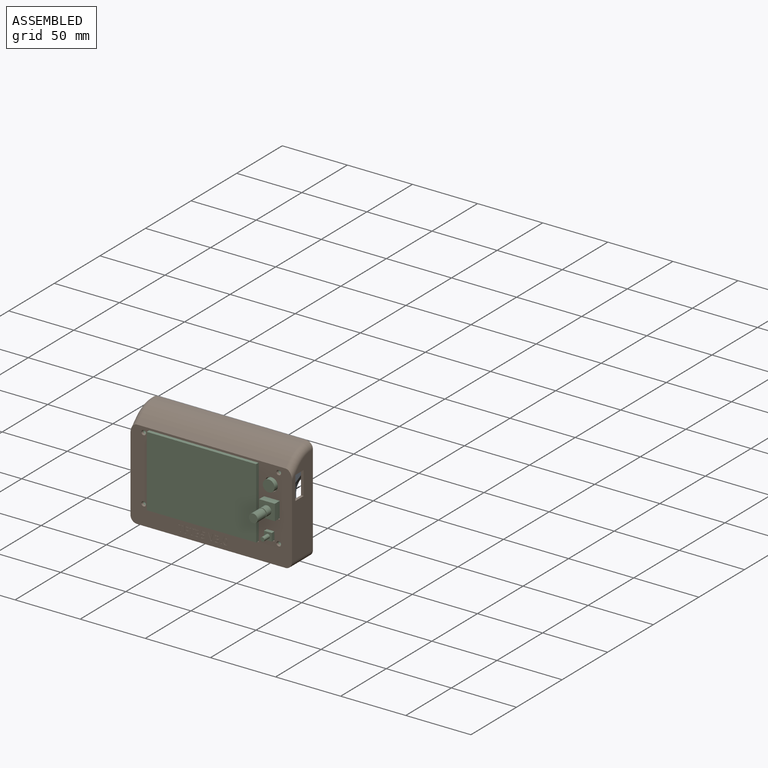
[diagram: assembled view]
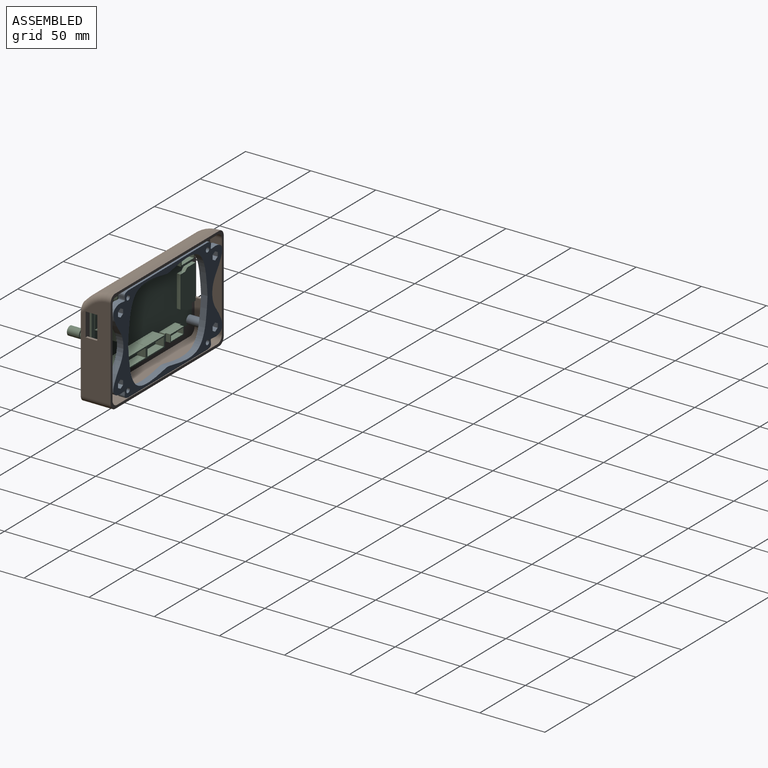
[diagram: assembled view, second angle]
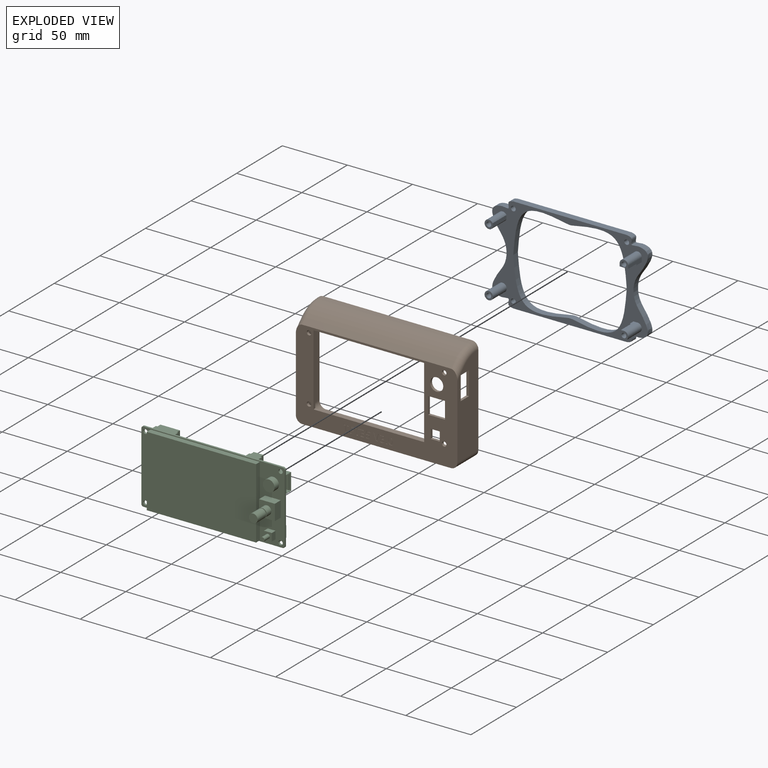
[diagram: exploded view]
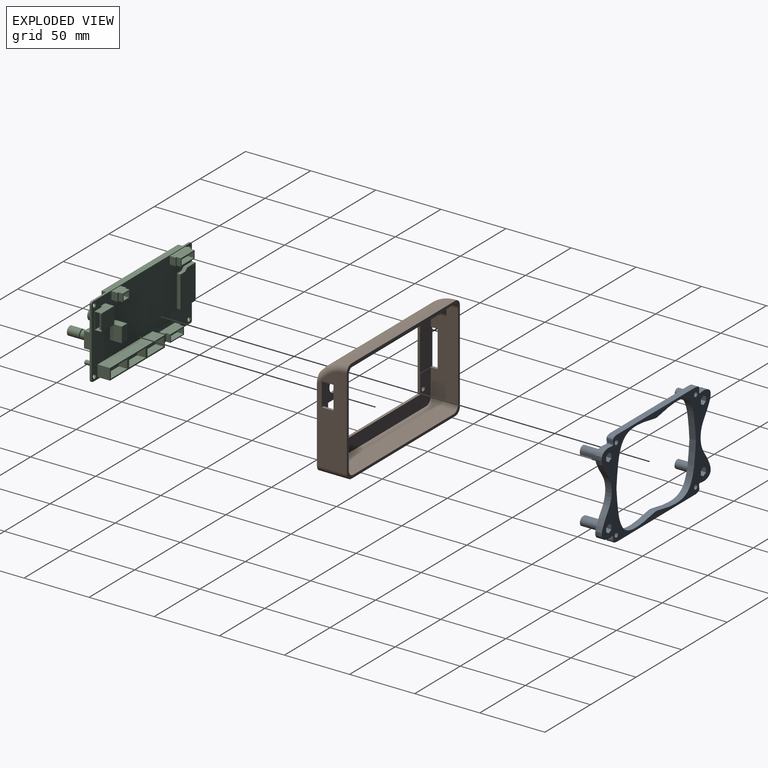
[diagram: exploded view, second angle]
ASSEMBLY  parts=3 mates=2
PART A: 75 faces, bbox 120.6x20x74.3 mm
  f0: extruded ~41.58x35.29mm, area 337.3mm2, adj f39,f40,f41,f73
  f1: extruded ~41.58x35.29mm, area 337.3mm2, adj f2,f40,f41,f73
  f2: extruded ~41.58x35.29mm, area 337.3mm2, adj f1,f40,f41,f74
  f3: plane 5x2.8mm, normal (-0.5,0,-0.87), area 16.2mm2, adj f4,f30,f41,f53
  f4: plane 5x3.23mm, normal (-1,0,0), area 16.2mm2, adj f3,f5,f41,f53
  f5: plane 5x2.8mm, normal (-0.5,0,0.87), area 16.2mm2, adj f4,f6,f41,f53
  f6: plane 5x2.8mm, normal (0.5,0,0.87), area 16.2mm2, adj f5,f7,f41,f53
  f7: plane 5x3.23mm, normal (1,0,0), area 16.2mm2, adj f6,f30,f41,f53
  f8: plane 5x3.23mm, normal (-1,0,0), area 16.2mm2, adj f9,f31,f41,f62
  f9: plane 5x2.8mm, normal (-0.5,0,0.87), area 16.2mm2, adj f8,f10,f41,f62
  f10: plane 5x2.8mm, normal (0.5,0,0.87), area 16.2mm2, adj f9,f11,f41,f62
  f11: plane 5x3.23mm, normal (1,0,0), area 16.2mm2, adj f10,f12,f41,f62
  f12: plane 5x2.8mm, normal (0.5,0,-0.87), area 16.2mm2, adj f11,f31,f41,f62
  f13: plane 5x2.8mm, normal (-0.5,0,-0.87), area 16.2mm2, adj f14,f36,f41,f52
  f14: plane 5x3.23mm, normal (-1,0,0), area 16.2mm2, adj f13,f15,f41,f52
  f15: plane 5x2.8mm, normal (-0.5,0,0.87), area 16.2mm2, adj f14,f16,f41,f52
  f16: plane 5x2.8mm, normal (0.5,0,0.87), area 16.2mm2, adj f15,f17,f41,f52
  f17: plane 5x3.23mm, normal (1,0,0), area 16.2mm2, adj f16,f36,f41,f52
  f18: plane 5x3.23mm, normal (1,0,0), area 16.2mm2, adj f19,f37,f41,f45
  f19: plane 5x2.8mm, normal (0.5,0,-0.87), area 16.2mm2, adj f18,f20,f41,f45
  f20: plane 5x2.8mm, normal (-0.5,0,-0.87), area 16.2mm2, adj f19,f21,f41,f45
  f21: plane 5x3.23mm, normal (-1,0,0), area 16.2mm2, adj f20,f22,f41,f45
  f22: plane 5x2.8mm, normal (-0.5,0,0.87), area 16.2mm2, adj f21,f37,f41,f45
  f23: cylinder r=20mm len=23.31mm, axis (0,1,0), area 124.4mm2, adj f24,f38,f40,f41
  f24: extruded ~25.5x16.2mm, area 201.4mm2, adj f23,f25,f40,f41
  f25: plane 87.1x5mm, normal (0,0,1), area 435.5mm2, adj f24,f26,f40,f41
  f26: extruded ~25.5x16.2mm, area 201.4mm2, adj f25,f27,f40,f41
  f27: cylinder r=20mm len=23.31mm, axis (0,1,0), area 124.4mm2, adj f26,f28,f40,f41
  f28: extruded ~25.5x16.2mm, area 201.4mm2, adj f27,f29,f40,f41
  f29: plane 87.1x5mm, normal (0,0,-1), area 435.5mm2, adj f28,f38,f40,f41
  f30: plane 5x2.8mm, normal (0.5,0,-0.87), area 16.2mm2, adj f3,f7,f41,f53
  f31: plane 5x2.8mm, normal (-0.5,0,-0.87), area 16.2mm2, adj f8,f12,f41,f62
  f32: cylinder r=1.85mm len=5mm, axis (0,1,0), area 58.1mm2, adj f40,f41
  f33: cylinder r=1.85mm len=5mm, axis (0,1,0), area 58.1mm2, adj f40,f41
  f34: cylinder r=1.85mm len=5mm, axis (0,1,0), area 58.1mm2, adj f40,f41
  f35: cylinder r=1.85mm len=5mm, axis (0,1,0), area 58.1mm2, adj f40,f41
  f36: plane 5x2.8mm, normal (0.5,0,-0.87), area 16.2mm2, adj f13,f17,f41,f52
  f37: plane 5x2.8mm, normal (0.5,0,0.87), area 16.2mm2, adj f18,f22,f41,f45
  f38: extruded ~25.5x16.2mm, area 201.4mm2, adj f23,f29,f40,f41
  f39: extruded ~41.58x35.29mm, area 337.3mm2, adj f0,f40,f41,f74
  f40: plane 120.64x74.3mm, normal (0,-1,0), area 2191mm2, adj f0,f1,f2,f23,f24,f25,f26,f27
  f41: plane 120.64x74.3mm, normal (0,1,0), area 2224.3mm2, adj f0,f1,f2,f3,f4,f5,f6,f7
  f42: cylinder r=1.85mm len=15mm, axis (0,1,0), area 174.4mm2, adj f44,f45
  f43: cylinder r=3.25mm len=15mm, axis (0,1,0), area 306.3mm2, adj f40,f44
  f44: plane 6.5x6.5mm, normal (0,-1,0), area 22.4mm2, adj f42,f43
  f45: plane 6.47x5.6mm, normal (0,1,0), area 16.4mm2, adj f18,f19,f20,f21,f22,f37,f42
  f46: plane 9x6.5mm, normal (0,0,-1), area 58.5mm2, adj f47,f49,f51,f72
  f47: plane 15x3.3mm, normal (1,0,0), area 40.5mm2, adj f40,f46,f48,f51,f71,f72
  f48: cylinder r=3.25mm len=15mm, axis (0,1,0), area 153.2mm2, adj f40,f47,f49,f51
  f49: plane 15x3.3mm, normal (-1,0,0), area 40.5mm2, adj f40,f46,f48,f51,f71,f72
  f50: cylinder r=1.85mm len=15mm, axis (0,1,0), area 174.4mm2, adj f51,f52
  f51: plane 6.5x5.55mm, normal (0,-1,0), area 20.8mm2, adj f46,f47,f48,f49,f50
  f52: plane 6.47x5.6mm, normal (0,1,0), area 16.4mm2, adj f13,f14,f15,f16,f17,f36,f50
  f53: plane 6.47x5.6mm, normal (0,1,0), area 16.4mm2, adj f3,f4,f5,f6,f7,f30,f60
  f54: plane 15x3.03mm, normal (1,0,0), area 45.4mm2, adj f40,f55,f59,f61
  f55: cylinder r=3.35mm len=15mm, axis (0,1,0), area 43.6mm2, adj f40,f54,f56,f61
  f56: plane 15x0.77mm, normal (0,0,1), area 11.6mm2, adj f40,f55,f57,f61
  f57: cylinder r=3.25mm len=15mm, axis (0,1,0), area 153.2mm2, adj f40,f56,f58,f61
  f58: plane 15x0.84mm, normal (0,0,-1), area 12.6mm2, adj f40,f57,f59,f61
  f59: cylinder r=3.35mm len=15mm, axis (0,1,0), area 42.5mm2, adj f40,f54,f58,f61
  f60: cylinder r=1.85mm len=15mm, axis (0,1,0), area 174.4mm2, adj f53,f61
  f61: plane 6.5x6.23mm, normal (0,-1,0), area 22.6mm2, adj f54,f55,f56,f57,f58,f59,f60
  f62: plane 6.47x5.6mm, normal (0,1,0), area 16.4mm2, adj f8,f9,f10,f11,f12,f31,f67
  f63: plane 15x3.19mm, normal (0,0,1), area 38mm2, adj f40,f64,f66,f68,f69,f70
  f64: plane 11x6.5mm, normal (-1,0,0), area 71.5mm2, adj f63,f65,f68,f69
  f65: plane 15x3.19mm, normal (0,0,-1), area 38mm2, adj f40,f64,f66,f68,f69,f70
  f66: cylinder r=3.25mm len=15mm, axis (0,1,0), area 153.2mm2, adj f40,f63,f65,f68
  f67: cylinder r=1.85mm len=15mm, axis (0,1,0), area 174.4mm2, adj f62,f68
  f68: plane 6.5x5.55mm, normal (0,-1,0), area 20.8mm2, adj f63,f64,f65,f66,f67
  f69: plane 6.5x0.89mm, normal (0,-1,0), area 5.8mm2, adj f63,f64,f65,f70
  f70: plane 6.5x4mm, normal (-1,0,0), area 26mm2, adj f40,f63,f65,f69
  f71: plane 6.5x6mm, normal (0,0,-1), area 39mm2, adj f40,f47,f49,f72
  f72: plane 6.5x1mm, normal (0,-1,0), area 6.5mm2, adj f46,f47,f49,f71
  f73: cylinder r=10mm len=5mm, axis (0,1,0), area 19.8mm2, adj f0,f1,f40,f41
  f74: cylinder r=10mm len=5mm, axis (0,1,0), area 19.8mm2, adj f2,f39,f40,f41
PART B: 198 faces, bbox 124x82.1x26.5 mm
  f0: plane 124x69mm, normal (0,0,1), area 3433.7mm2, adj f4,f5,f9,f11,f12,f13,f14,f15
  f1: plane 120x68mm, normal (0,0,-1), area 2809.1mm2, adj f3,f6,f10,f11,f12,f13,f14,f15
  f2: plane 110x9mm, normal (0,1,0), area 990mm2, adj f7,f37,f43,f45
  f3: plane 66x21mm, normal (-1,0,0), area 1141.6mm2, adj f1,f7,f33,f34,f35,f37,f41,f44
  f4: plane 70x23mm, normal (1,0,0), area 1362mm2, adj f0,f7,f32,f33,f34,f35,f46,f47
  f5: plane 70x23mm, normal (-1,0,0), area 1354mm2, adj f0,f7,f28,f29,f30,f31,f49,f50
  f6: plane 66x21mm, normal (1,0,0), area 1128mm2, adj f1,f7,f28,f29,f30,f31,f37,f40
  f7: plane 124x80mm, normal (0,0,-1), area 800mm2, adj f2,f3,f4,f5,f6,f8,f9,f10
  f8: plane 114x1.64mm, normal (0,-1,0), area 187.5mm2, adj f7,f39,f46,f51
  f9: plane 114x23mm, normal (0,1,0), area 2622mm2, adj f0,f7,f52,f53
  f10: plane 110x21mm, normal (0,-1,0), area 2310mm2, adj f1,f7,f42,f44
  f11: cylinder r=1.75mm len=3.5mm, axis (0,0,1), area 22mm2, adj f0,f1
  f12: cylinder r=1.75mm len=3.5mm, axis (0,0,1), area 22mm2, adj f0,f1
  f13: cylinder r=1.75mm len=3.5mm, axis (0,0,1), area 22mm2, adj f0,f1
  f14: cylinder r=1.75mm len=3.5mm, axis (0,0,1), area 22mm2, adj f0,f1
  f15: plane 85x2mm, normal (0,1,0), area 170mm2, adj f0,f1,f16,f18
  f16: plane 54.97x2mm, normal (-1,0,0), area 104.3mm2, adj f0,f1,f15,f17,f32,f33,f35
  f17: plane 85x2mm, normal (0,-1,0), area 170mm2, adj f0,f1,f16,f18
  f18: plane 54.97x2mm, normal (1,0,0), area 109.9mm2, adj f0,f1,f15,f17
  f19: plane 7x2mm, normal (0,1,0), area 14mm2, adj f0,f1,f20,f22
  f20: plane 7x2mm, normal (-1,0,0), area 14mm2, adj f0,f1,f19,f21
  f21: plane 7x2mm, normal (0,-1,0), area 14mm2, adj f0,f1,f20,f22
  f22: plane 7x2mm, normal (1,0,0), area 14mm2, adj f0,f1,f19,f21
  f23: plane 13x2mm, normal (0,1,0), area 26mm2, adj f0,f1,f24,f26
  f24: plane 13x2mm, normal (-1,0,0), area 26mm2, adj f0,f1,f23,f25
  f25: plane 13x2mm, normal (0,-1,0), area 26mm2, adj f0,f1,f24,f26
  f26: plane 13x2mm, normal (1,0,0), area 26mm2, adj f0,f1,f23,f25
  f27: cylinder r=5mm len=10mm, axis (0,0,1), area 62.8mm2, adj f0,f1
  f28: plane 18x2mm, normal (0,0,-1), area 36mm2, adj f5,f6,f29,f31
  f29: plane 9x2mm, normal (0,-1,0), area 18mm2, adj f5,f6,f28,f30
  f30: plane 18x2mm, normal (0,0,1), area 36mm2, adj f5,f6,f29,f31
  f31: plane 9x2mm, normal (0,1,0), area 18mm2, adj f5,f6,f28,f30
  f32: plane 28x13.5mm, normal (0,0,-1), area 378mm2, adj f4,f16,f33,f35
  f33: plane 13.5x5.5mm, normal (0,1,0), area 13.3mm2, adj f1,f3,f4,f16,f32,f34
  f34: plane 28x2mm, normal (0,0,1), area 56mm2, adj f3,f4,f33,f35
  f35: plane 13.5x5.5mm, normal (0,-1,0), area 13.3mm2, adj f1,f3,f4,f16,f32,f34
  f36: plane 110x12mm, normal (0,1,0), area 1320mm2, adj f1,f37,f40,f41
  f37: plane 120x13mm, normal (0,0,-1), area 960mm2, adj f2,f3,f6,f36,f40,f41,f43,f45
  f38: plane 114x3.68mm, normal (0,-0.71,0.71), area 592.9mm2, adj f0,f39,f48,f49
  f39: cylinder r=25mm len=114mm, axis (1,0,0), area 2238.4mm2, adj f8,f38,f47,f50
  f40: cylinder r=5mm len=12mm, axis (0,0,1), area 94.2mm2, adj f1,f6,f36,f37
  f41: cylinder r=5mm len=12mm, axis (0,0,1), area 94.2mm2, adj f1,f3,f36,f37
  f42: cylinder r=5mm len=21mm, axis (0,0,-1), area 164.9mm2, adj f1,f6,f7,f10
  f43: cylinder r=5mm len=9mm, axis (0,0,-1), area 70.7mm2, adj f2,f6,f7,f37
  f44: cylinder r=5mm len=21mm, axis (0,0,-1), area 164.9mm2, adj f1,f3,f7,f10
  f45: cylinder r=5mm len=9mm, axis (0,0,-1), area 70.7mm2, adj f2,f3,f7,f37
  f46: cylinder r=5mm len=5mm, axis (0,0,1), area 12.9mm2, adj f4,f7,f8,f47
  f47: torus R=20mm, axis (-1,0,0), area 143mm2, adj f4,f39,f46,f48
  f48: cylinder r=5mm len=10.75mm, axis (0,-0.71,-0.71), area 55.1mm2, adj f0,f4,f38,f47
  f49: cylinder r=5mm len=10.75mm, axis (0,0.71,0.71), area 55.1mm2, adj f0,f5,f38,f50
  f50: torus R=20mm, axis (1,0,0), area 143mm2, adj f5,f39,f49,f51
  f51: cylinder r=5mm len=5mm, axis (0,0,1), area 12.9mm2, adj f5,f7,f8,f50
  f52: cylinder r=5mm len=23mm, axis (0,0,1), area 180.6mm2, adj f0,f4,f7,f9
  f53: cylinder r=5mm len=23mm, axis (0,0,1), area 180.6mm2, adj f0,f5,f7,f9
  f54: plane 1.13x0.2mm, normal (0,-1,0), area 0.2mm2, adj f0,f55,f61,f62
  f55: plane 4.39x0.2mm, normal (1,0,0), area 0.9mm2, adj f0,f54,f56,f62
  f56: plane 1.45x0.2mm, normal (0,-1,0), area 0.3mm2, adj f0,f55,f57,f62
  f57: plane 0.94x0.2mm, normal (1,0,0), area 0.2mm2, adj f0,f56,f58,f62
  f58: plane 4.03x0.2mm, normal (0,1,0), area 0.8mm2, adj f0,f57,f59,f62
  f59: plane 0.94x0.2mm, normal (-1,0,0), area 0.2mm2, adj f0,f58,f60,f62
  f60: plane 1.45x0.2mm, normal (0,-1,0), area 0.3mm2, adj f0,f59,f61,f62
  f61: plane 4.39x0.2mm, normal (-1,0,0), area 0.9mm2, adj f0,f54,f60,f62
  f62: plane 5.33x4.03mm, normal (0,0,1), area 8.7mm2, adj f54,f55,f56,f57,f58,f59,f60,f61
  f63: plane 1.11x0.2mm, normal (0,-1,0), area 0.2mm2, adj f0,f64,f72,f73
  f64: plane 2.11x0.2mm, normal (1,0,0), area 0.4mm2, adj f0,f63,f65,f73
  f65: plane 1.81x0.2mm, normal (0,-1,0), area 0.4mm2, adj f0,f64,f66,f73
  f66: plane 0.92x0.2mm, normal (1,0,0), area 0.2mm2, adj f0,f65,f67,f73
  f67: plane 1.81x0.2mm, normal (0,1,0), area 0.4mm2, adj f0,f66,f68,f73
  f68: plane 1.37x0.2mm, normal (1,0,0), area 0.3mm2, adj f0,f67,f69,f73
  f69: plane 1.94x0.2mm, normal (0,-1,0), area 0.4mm2, adj f0,f68,f70,f73
  f70: plane 0.93x0.2mm, normal (1,0,0), area 0.2mm2, adj f0,f69,f71,f73
  f71: plane 3.06x0.2mm, normal (0,1,0), area 0.6mm2, adj f0,f70,f72,f73
  f72: plane 5.33x0.2mm, normal (-1,0,0), area 1.1mm2, adj f0,f63,f71,f73
  f73: plane 5.33x3.06mm, normal (0,0,1), area 9.4mm2, adj f63,f64,f65,f66,f67,f68,f69,f70
  f74: plane 1.13x0.2mm, normal (0,-1,0), area 0.2mm2, adj f0,f75,f81,f82
  f75: plane 4.39x0.2mm, normal (1,0,0), area 0.9mm2, adj f0,f74,f76,f82
  f76: plane 1.45x0.2mm, normal (0,-1,0), area 0.3mm2, adj f0,f75,f77,f82
  f77: plane 0.94x0.2mm, normal (1,0,0), area 0.2mm2, adj f0,f76,f78,f82
  f78: plane 4.03x0.2mm, normal (0,1,0), area 0.8mm2, adj f0,f77,f79,f82
  f79: plane 0.94x0.2mm, normal (-1,0,0), area 0.2mm2, adj f0,f78,f80,f82
  f80: plane 1.45x0.2mm, normal (0,-1,0), area 0.3mm2, adj f0,f79,f81,f82
  f81: plane 4.39x0.2mm, normal (-1,0,0), area 0.9mm2, adj f0,f74,f80,f82
  f82: plane 5.33x4.03mm, normal (0,0,1), area 8.7mm2, adj f74,f75,f76,f77,f78,f79,f80,f81
  f83: extruded ~0.85x0.3mm, area 0.2mm2, adj f0,f84,f109,f110
  f84: extruded ~0.93x0.48mm, area 0.2mm2, adj f0,f83,f85,f110
  f85: extruded ~1.31x0.34mm, area 0.3mm2, adj f0,f84,f86,f110
  f86: extruded ~1.74x0.53mm, area 0.4mm2, adj f0,f85,f87,f110
  f87: plane 0.78x0.52mm, normal (-0.83,-0.56,0), area 0.2mm2, adj f0,f86,f88,f110
  f88: extruded ~0.6x0.3mm, area 0.1mm2, adj f0,f87,f89,f110
  f89: extruded ~0.53x0.2mm, area 0.1mm2, adj f0,f88,f90,f110
  f90: extruded ~0.76x0.61mm, area 0.2mm2, adj f0,f89,f91,f110
  f91: extruded ~0.56x0.29mm, area 0.1mm2, adj f0,f90,f92,f110
  f92: extruded ~0.91x0.2mm, area 0.2mm2, adj f0,f91,f93,f110
  f93: plane 0.41x0.2mm, normal (0,1,0), area 0.1mm2, adj f0,f92,f94,f110
  f94: plane 0.86x0.2mm, normal (-1,0,0), area 0.2mm2, adj f0,f93,f95,f110
  f95: plane 0.41x0.2mm, normal (0,-1,0), area 0.1mm2, adj f0,f94,f96,f110
  f96: extruded ~0.98x0.2mm, area 0.2mm2, adj f0,f95,f97,f110
  f97: extruded ~0.53x0.31mm, area 0.1mm2, adj f0,f96,f98,f110
  f98: extruded ~0.61x0.27mm, area 0.1mm2, adj f0,f97,f99,f110
  f99: extruded ~0.83x0.2mm, area 0.2mm2, adj f0,f98,f100,f110
  f100: extruded ~0.74x0.2mm, area 0.1mm2, adj f0,f99,f101,f110
  f101: extruded ~0.68x0.26mm, area 0.1mm2, adj f0,f100,f102,f110
  f102: plane 0.96x0.2mm, normal (-1,0,0), area 0.2mm2, adj f0,f101,f103,f110
  f103: extruded ~1.54x0.29mm, area 0.3mm2, adj f0,f102,f104,f110
  f104: extruded ~1.59x0.43mm, area 0.3mm2, adj f0,f103,f105,f110
  f105: extruded ~1.2x0.56mm, area 0.3mm2, adj f0,f104,f106,f110
  f106: extruded ~0.84x0.33mm, area 0.2mm2, adj f0,f105,f107,f110
  f107: extruded ~0.98x0.39mm, area 0.2mm2, adj f0,f106,f108,f110
  f108: plane 0.2x0.02mm, normal (1,0,0), area 0mm2, adj f0,f107,f109,f110
  f109: extruded ~0.85x0.48mm, area 0.2mm2, adj f0,f83,f108,f110
  f110: plane 5.48x3.69mm, normal (0,0,1), area 10.7mm2, adj f83,f84,f85,f86,f87,f88,f89,f90
  f111: extruded ~1.23x0.43mm, area 0.3mm2, adj f0,f112,f130,f131
  f112: extruded ~0.55x0.2mm, area 0.1mm2, adj f0,f111,f113,f131
  f113: plane 0.2x0.13mm, normal (-0.2,0.98,0), area 0mm2, adj f0,f112,f114,f131
  f114: plane 1.05x0.2mm, normal (1,-0.09,0), area 0.2mm2, adj f0,f113,f115,f131
  f115: plane 1.9x0.2mm, normal (0,-1,0), area 0.4mm2, adj f0,f114,f116,f131
  f116: plane 0.96x0.2mm, normal (1,0,0), area 0.2mm2, adj f0,f115,f117,f131
  f117: plane 2.89x0.2mm, normal (0,1,0), area 0.6mm2, adj f0,f116,f118,f131
  f118: plane 2.72x0.2mm, normal (-1,0.07,0), area 0.5mm2, adj f0,f117,f119,f131
  f119: plane 0.45x0.24mm, normal (-0.47,-0.88,0), area 0.1mm2, adj f0,f118,f120,f131
  f120: extruded ~0.38x0.2mm, area 0.1mm2, adj f0,f119,f121,f131
  f121: extruded ~0.43x0.2mm, area 0.1mm2, adj f0,f120,f122,f131
  f122: extruded ~1.07x0.81mm, area 0.3mm2, adj f0,f121,f123,f131
  f123: extruded ~1.03x0.85mm, area 0.3mm2, adj f0,f122,f124,f131
  f124: extruded ~0.73x0.2mm, area 0.1mm2, adj f0,f123,f125,f131
  f125: extruded ~0.67x0.25mm, area 0.1mm2, adj f0,f124,f126,f131
  f126: plane 0.97x0.2mm, normal (-1,0,0), area 0.2mm2, adj f0,f125,f127,f131
  f127: extruded ~1.44x0.29mm, area 0.3mm2, adj f0,f126,f128,f131
  f128: extruded ~1.58x0.48mm, area 0.3mm2, adj f0,f127,f129,f131
  f129: extruded ~1.37x0.55mm, area 0.3mm2, adj f0,f128,f130,f131
  f130: extruded ~1.19x0.46mm, area 0.3mm2, adj f0,f111,f129,f131
  f131: plane 5.4x3.56mm, normal (0,0,1), area 11.2mm2, adj f111,f112,f113,f114,f115,f116,f117,f118
  f132: plane 1.14x0.2mm, normal (0,1,0), area 0.2mm2, adj f0,f133,f141,f142
  f133: plane 3.17x1.01mm, normal (-0.95,0.3,0), area 0.7mm2, adj f0,f132,f134,f142
  f134: extruded ~1.17x0.27mm, area 0.2mm2, adj f0,f133,f135,f142
  f135: extruded ~0.52x0.2mm, area 0.1mm2, adj f0,f134,f136,f142
  f136: extruded ~0.65x0.2mm, area 0.1mm2, adj f0,f135,f137,f142
  f137: plane 3.17x1mm, normal (0.95,0.3,0), area 0.7mm2, adj f0,f136,f138,f142
  f138: plane 1.14x0.2mm, normal (0,1,0), area 0.2mm2, adj f0,f137,f139,f142
  f139: plane 5.33x1.81mm, normal (-0.95,-0.32,0), area 1.1mm2, adj f0,f138,f140,f142
  f140: plane 1.23x0.2mm, normal (0,-1,0), area 0.2mm2, adj f0,f139,f141,f142
  f141: plane 5.33x1.81mm, normal (0.95,-0.32,0), area 1.1mm2, adj f0,f132,f140,f142
  f142: plane 5.33x4.85mm, normal (0,0,1), area 11mm2, adj f132,f133,f134,f135,f136,f137,f138,f139
  f143: extruded ~0.85x0.3mm, area 0.2mm2, adj f0,f144,f169,f170
  f144: extruded ~0.93x0.48mm, area 0.2mm2, adj f0,f143,f145,f170
  f145: extruded ~1.31x0.34mm, area 0.3mm2, adj f0,f144,f146,f170
  f146: extruded ~1.74x0.53mm, area 0.4mm2, adj f0,f145,f147,f170
  f147: plane 0.78x0.52mm, normal (-0.83,-0.56,0), area 0.2mm2, adj f0,f146,f148,f170
  f148: extruded ~0.6x0.3mm, area 0.1mm2, adj f0,f147,f149,f170
  f149: extruded ~0.53x0.2mm, area 0.1mm2, adj f0,f148,f150,f170
  f150: extruded ~0.76x0.61mm, area 0.2mm2, adj f0,f149,f151,f170
  f151: extruded ~0.56x0.29mm, area 0.1mm2, adj f0,f150,f152,f170
  f152: extruded ~0.91x0.2mm, area 0.2mm2, adj f0,f151,f153,f170
  f153: plane 0.41x0.2mm, normal (0,1,0), area 0.1mm2, adj f0,f152,f154,f170
  f154: plane 0.86x0.2mm, normal (-1,0,0), area 0.2mm2, adj f0,f153,f155,f170
  f155: plane 0.41x0.2mm, normal (0,-1,0), area 0.1mm2, adj f0,f154,f156,f170
  f156: extruded ~0.98x0.2mm, area 0.2mm2, adj f0,f155,f157,f170
  f157: extruded ~0.53x0.31mm, area 0.1mm2, adj f0,f156,f158,f170
  f158: extruded ~0.61x0.27mm, area 0.1mm2, adj f0,f157,f159,f170
  f159: extruded ~0.83x0.2mm, area 0.2mm2, adj f0,f158,f160,f170
  f160: extruded ~0.74x0.2mm, area 0.1mm2, adj f0,f159,f161,f170
  f161: extruded ~0.68x0.26mm, area 0.1mm2, adj f0,f160,f162,f170
  f162: plane 0.96x0.2mm, normal (-1,0,0), area 0.2mm2, adj f0,f161,f163,f170
  f163: extruded ~1.54x0.29mm, area 0.3mm2, adj f0,f162,f164,f170
  f164: extruded ~1.59x0.43mm, area 0.3mm2, adj f0,f163,f165,f170
  f165: extruded ~1.2x0.56mm, area 0.3mm2, adj f0,f164,f166,f170
  f166: extruded ~0.84x0.33mm, area 0.2mm2, adj f0,f165,f167,f170
  f167: extruded ~0.98x0.39mm, area 0.2mm2, adj f0,f166,f168,f170
  f168: plane 0.2x0.02mm, normal (1,0,0), area 0mm2, adj f0,f167,f169,f170
  f169: extruded ~0.85x0.48mm, area 0.2mm2, adj f0,f143,f168,f170
  f170: plane 5.48x3.69mm, normal (0,0,1), area 10.7mm2, adj f143,f144,f145,f146,f147,f148,f149,f150
  f171: extruded ~0.46x0.2mm, area 0.1mm2, adj f0,f172,f178,f179
  f172: extruded ~0.46x0.2mm, area 0.1mm2, adj f0,f171,f173,f179
  f173: extruded ~0.47x0.2mm, area 0.1mm2, adj f0,f172,f174,f179
  f174: extruded ~0.47x0.2mm, area 0.1mm2, adj f0,f173,f175,f179
  f175: extruded ~0.45x0.2mm, area 0.1mm2, adj f0,f174,f176,f179
  f176: extruded ~0.46x0.2mm, area 0.1mm2, adj f0,f175,f177,f179
  f177: extruded ~0.47x0.2mm, area 0.1mm2, adj f0,f176,f178,f179
  f178: extruded ~0.48x0.2mm, area 0.1mm2, adj f0,f171,f177,f179
  f179: plane 1.28x1.24mm, normal (0,0,1), area 1.3mm2, adj f171,f172,f173,f174,f175,f176,f177,f178
  f180: extruded ~1.4x0.2mm, area 0.3mm2, adj f181,f195,f196,f197
  f181: extruded ~1.41x0.2mm, area 0.3mm2, adj f180,f182,f196,f197
  f182: extruded ~0.57x0.43mm, area 0.2mm2, adj f181,f183,f196,f197
  f183: extruded ~0.57x0.43mm, area 0.2mm2, adj f182,f184,f196,f197
  f184: extruded ~1.41x0.2mm, area 0.3mm2, adj f183,f185,f196,f197
  f185: extruded ~1.4x0.2mm, area 0.3mm2, adj f184,f186,f196,f197
  f186: extruded ~0.57x0.43mm, area 0.2mm2, adj f185,f195,f196,f197
  f187: extruded ~2.07x0.46mm, area 0.4mm2, adj f0,f188,f194,f196
  f188: extruded ~2.05x0.47mm, area 0.4mm2, adj f0,f187,f189,f196
  f189: extruded ~1.39x0.7mm, area 0.3mm2, adj f0,f188,f190,f196
  f190: extruded ~1.4x0.67mm, area 0.3mm2, adj f0,f189,f191,f196
  f191: extruded ~2.08x0.46mm, area 0.4mm2, adj f0,f190,f192,f196
  f192: extruded ~2.05x0.47mm, area 0.4mm2, adj f0,f191,f193,f196
  f193: extruded ~1.39x0.69mm, area 0.3mm2, adj f0,f192,f194,f196
  f194: extruded ~1.41x0.67mm, area 0.3mm2, adj f0,f187,f193,f196
  f195: extruded ~0.57x0.42mm, area 0.2mm2, adj f180,f186,f196,f197
  f196: plane 5.49x3.73mm, normal (0,0,1), area 12.4mm2, adj f180,f181,f182,f183,f184,f185,f186,f187
  f197: plane 3.67x1.48mm, normal (0,0,1), area 4.6mm2, adj f180,f181,f182,f183,f184,f185,f186,f195
PART C: 144 faces, bbox 110x55.8x32.5 mm
  f0: plane 11.6x9.2mm, normal (1,0,0), area 106.7mm2, adj f1,f3,f4,f79
  f1: plane 9.2x6mm, normal (0,1,0), area 55.2mm2, adj f0,f2,f4,f79
  f2: plane 11.6x9.2mm, normal (-1,0,0), area 106.7mm2, adj f1,f3,f4,f79
  f3: plane 9.2x6mm, normal (0,-1,0), area 55.2mm2, adj f0,f2,f4,f79
  f4: plane 11.6x6mm, normal (0,0,-1), area 69.6mm2, adj f0,f1,f2,f3
  f5: cylinder r=4.5mm len=9mm, axis (0,0,1), area 138.5mm2, adj f6,f143
  f6: plane 9x9mm, normal (0,0,1), area 63.6mm2, adj f5
  f7: plane 13.5x4.75mm, normal (0,-1,0), area 64.1mm2, adj f8,f10,f11,f20
  f8: plane 4.75x4.4mm, normal (-1,0,0), area 20.9mm2, adj f7,f9,f11,f20
  f9: plane 13.5x4.75mm, normal (0,1,0), area 64.1mm2, adj f8,f10,f11,f20
  f10: plane 4.75x4.4mm, normal (1,0,0), area 20.9mm2, adj f7,f9,f11,f20
  f11: plane 13.5x4.4mm, normal (0,0,-1), area 59.4mm2, adj f7,f8,f9,f10
  f12: plane 5.9x3.3mm, normal (-1,0,0), area 19.5mm2, adj f13,f17,f19,f20
  f13: plane 5.9x1.18mm, normal (0,0,-1), area 6.9mm2, adj f12,f16,f17,f19
  f14: plane 5.9x3.3mm, normal (1,0,0), area 19.5mm2, adj f15,f17,f19,f20
  f15: plane 5.9x1.18mm, normal (0,0,-1), area 6.9mm2, adj f14,f17,f18,f19
  f16: plane 5.9x4.45mm, normal (-1,0,0), area 26.3mm2, adj f13,f17,f19,f79
  f17: plane 17.35x7.75mm, normal (0,1,0), area 126.7mm2, adj f12,f13,f14,f15,f16,f18,f20,f79
  f18: plane 5.9x4.45mm, normal (1,0,0), area 26.3mm2, adj f15,f17,f19,f79
  f19: plane 17.35x7.75mm, normal (0,-1,0), area 126.7mm2, adj f12,f13,f14,f15,f16,f18,f20,f79
  f20: plane 15x5.9mm, normal (0,0,-1), area 29.1mm2, adj f7,f8,f9,f10,f12,f14,f17,f19
  f21: plane 18x6.5mm, normal (0,-1,0), area 117mm2, adj f22,f24,f25,f40
  f22: plane 6.75x6.5mm, normal (-1,0,0), area 43.9mm2, adj f21,f23,f25,f40
  f23: plane 18x6.5mm, normal (0,1,0), area 117mm2, adj f22,f24,f25,f40
  f24: plane 6.75x6.5mm, normal (1,0,0), area 43.9mm2, adj f21,f23,f25,f40
  f25: plane 18x6.75mm, normal (0,0,-1), area 121.5mm2, adj f21,f22,f23,f24
  f26: plane 18x6.5mm, normal (0,-1,0), area 117mm2, adj f27,f29,f30,f35
  f27: plane 6.75x6.5mm, normal (-1,0,0), area 43.9mm2, adj f26,f28,f30,f35
  f28: plane 18x6.5mm, normal (0,1,0), area 117mm2, adj f27,f29,f30,f35
  f29: plane 6.75x6.5mm, normal (1,0,0), area 43.9mm2, adj f26,f28,f30,f35
  f30: plane 18x6.75mm, normal (0,0,-1), area 121.5mm2, adj f26,f27,f28,f29
  f31: plane 9.5x8.75mm, normal (1,0,0), area 83.1mm2, adj f32,f34,f35,f79
  f32: plane 20x9.5mm, normal (0,1,0), area 190mm2, adj f31,f33,f35,f79
  f33: plane 9.5x8.75mm, normal (-1,0,0), area 83.1mm2, adj f32,f34,f35,f79
  f34: plane 20x9.5mm, normal (0,-1,0), area 190mm2, adj f31,f33,f35,f79
  f35: plane 20x8.75mm, normal (0,0,-1), area 53.5mm2, adj f26,f27,f28,f29,f31,f32,f33,f34
  f36: plane 20x9.5mm, normal (0,-1,0), area 190mm2, adj f37,f39,f40,f79
  f37: plane 9.5x8.75mm, normal (1,0,0), area 83.1mm2, adj f36,f38,f40,f79
  f38: plane 20x9.5mm, normal (0,1,0), area 190mm2, adj f37,f39,f40,f79
  f39: plane 9.5x8.75mm, normal (-1,0,0), area 83.1mm2, adj f36,f38,f40,f79
  f40: plane 20x8.75mm, normal (0,0,-1), area 53.5mm2, adj f21,f22,f23,f24,f36,f37,f38,f39
  f41: plane 18x6.5mm, normal (0,-1,0), area 117mm2, adj f42,f44,f45,f50
  f42: plane 6.75x6.5mm, normal (-1,0,0), area 43.9mm2, adj f41,f43,f45,f50
  f43: plane 18x6.5mm, normal (0,1,0), area 117mm2, adj f42,f44,f45,f50
  f44: plane 6.75x6.5mm, normal (1,0,0), area 43.9mm2, adj f41,f43,f45,f50
  f45: plane 18x6.75mm, normal (0,0,-1), area 121.5mm2, adj f41,f42,f43,f44
  f46: plane 20x9.5mm, normal (0,1,0), area 190mm2, adj f47,f49,f50,f79
  f47: plane 9.5x8.75mm, normal (-1,0,0), area 83.1mm2, adj f46,f48,f50,f79
  f48: plane 20x9.5mm, normal (0,-1,0), area 190mm2, adj f47,f49,f50,f79
  f49: plane 9.5x8.75mm, normal (1,0,0), area 83.1mm2, adj f46,f48,f50,f79
  f50: plane 20x8.75mm, normal (0,0,-1), area 53.5mm2, adj f41,f42,f43,f44,f46,f47,f48,f49
  f51: plane 10.99x9.5mm, normal (0,0,1), area 104.4mm2, adj f52,f54,f55,f60
  f52: plane 9.5x1mm, normal (0,1,0), area 9.5mm2, adj f51,f53,f55,f60
  f53: plane 10.99x9.5mm, normal (0,0,-1), area 104.4mm2, adj f52,f54,f55,f60
  f54: plane 9.5x1mm, normal (0,-1,0), area 9.5mm2, adj f51,f53,f55,f60
  f55: plane 10.99x1mm, normal (1,0,0), area 11mm2, adj f51,f52,f53,f54
  f56: plane 12.4x10mm, normal (0,0,1), area 124mm2, adj f57,f59,f60,f64
  f57: plane 10x4.9mm, normal (0,-1,0), area 49mm2, adj f56,f58,f60,f64
  f58: plane 12.4x10mm, normal (0,0,-1), area 124mm2, adj f57,f59,f60,f64
  f59: plane 10x4.9mm, normal (0,1,0), area 49mm2, adj f56,f58,f60,f64
  f60: plane 12.4x4.9mm, normal (1,0,0), area 49.8mm2, adj f51,f52,f53,f54,f56,f57,f58,f59
  f61: plane 13x9mm, normal (0,0,1), area 117mm2, adj f62,f63,f64,f66
  f62: plane 13x1.5mm, normal (1,0,0), area 19.5mm2, adj f61,f63,f66,f79
  f63: plane 13.75x7mm, normal (0,1,0), area 82.7mm2, adj f61,f62,f64,f65,f67,f79
  f64: plane 13x5.5mm, normal (1,0,0), area 10.7mm2, adj f56,f57,f58,f59,f61,f63,f66,f67
  f65: plane 13x7mm, normal (-1,0,0), area 91mm2, adj f63,f66,f67,f79
  f66: plane 13.75x7mm, normal (0,-1,0), area 82.8mm2, adj f61,f62,f64,f65,f67,f79
  f67: plane 13.75x13mm, normal (0,0,-1), area 178.8mm2, adj f63,f64,f65,f66
  f68: plane 10x2.55mm, normal (0,1,0), area 25.5mm2, adj f69,f71,f72,f136
  f69: plane 24.3x10mm, normal (0,0,-1), area 243mm2, adj f68,f70,f72,f136
  f70: plane 10x2.55mm, normal (0,-1,0), area 25.5mm2, adj f69,f71,f72,f136
  f71: plane 24.3x10mm, normal (0,0,1), area 243mm2, adj f68,f70,f72,f136
  f72: plane 24.3x2.55mm, normal (-1,0,0), area 62mm2, adj f68,f69,f70,f71
  f73: plane 16.5x2.8mm, normal (0,-1,0), area 46.2mm2, adj f74,f78,f79,f136
  f74: plane 24.4x2.8mm, normal (1,0,0), area 68.3mm2, adj f73,f75,f78,f79
  f75: plane 5x2.8mm, normal (0,1,0), area 14mm2, adj f74,f76,f78,f79
  f76: plane 2.8x2.5mm, normal (0.64,0.77,0), area 9.1mm2, adj f75,f77,f78,f79
  f77: plane 9x2.8mm, normal (0,1,0), area 25.2mm2, adj f76,f78,f79,f136
  f78: plane 26.5x16.5mm, normal (0,0,-1), area 424.1mm2, adj f73,f74,f75,f76,f77,f136
  f79: plane 110x55.77mm, normal (0,0,-1), area 4755.7mm2, adj f0,f1,f2,f3,f16,f17,f18,f19
  f80: plane 6x4.5mm, normal (0,0,-1), area 27mm2, adj f81,f82,f83,f84
  f81: plane 4.9x4.5mm, normal (-1,0,0), area 22mm2, adj f80,f82,f83,f93
  f82: plane 6x4.9mm, normal (0,-1,0), area 29.4mm2, adj f80,f81,f84,f93
  f83: plane 6x4.9mm, normal (0,1,0), area 29.4mm2, adj f80,f81,f84,f93
  f84: plane 4.9x4.5mm, normal (1,0,0), area 22mm2, adj f80,f82,f83,f93
  f85: plane 6x3.3mm, normal (-1,0,0), area 19.8mm2, adj f86,f90,f92,f93
  f86: plane 6x1.15mm, normal (0,0,-1), area 6.9mm2, adj f85,f89,f90,f92
  f87: plane 6x3.3mm, normal (1,0,0), area 19.8mm2, adj f88,f90,f92,f93
  f88: plane 6x1.15mm, normal (0,0,-1), area 6.9mm2, adj f87,f90,f91,f92
  f89: plane 6x4.7mm, normal (-1,0,0), area 28.2mm2, adj f79,f86,f90,f92
  f90: plane 9.8x8mm, normal (0,1,0), area 70.8mm2, adj f79,f85,f86,f87,f88,f89,f91,f93
  f91: plane 6x4.7mm, normal (1,0,0), area 28.2mm2, adj f79,f88,f90,f92
  f92: plane 9.8x8mm, normal (0,-1,0), area 70.8mm2, adj f79,f85,f86,f87,f88,f89,f91,f93
  f93: plane 7.5x6mm, normal (0,0,-1), area 18mm2, adj f81,f82,f83,f84,f85,f87,f90,f92
  f94: plane 13.5x4.9mm, normal (0,-1,0), area 66.2mm2, adj f95,f97,f98,f107
  f95: plane 4.9x4.4mm, normal (-1,0,0), area 21.6mm2, adj f94,f96,f98,f107
  f96: plane 13.5x4.9mm, normal (0,1,0), area 66.2mm2, adj f95,f97,f98,f107
  f97: plane 4.9x4.4mm, normal (1,0,0), area 21.6mm2, adj f94,f96,f98,f107
  f98: plane 13.5x4.4mm, normal (0,0,-1), area 59.4mm2, adj f94,f95,f96,f97
  f99: plane 5.9x3.3mm, normal (-1,0,0), area 19.5mm2, adj f100,f104,f106,f107
  f100: plane 5.9x1.15mm, normal (0,0,-1), area 6.8mm2, adj f99,f103,f104,f106
  f101: plane 5.9x3.3mm, normal (1,0,0), area 19.5mm2, adj f102,f104,f106,f107
  f102: plane 5.9x1.15mm, normal (0,0,-1), area 6.8mm2, adj f101,f104,f105,f106
  f103: plane 5.9x4.45mm, normal (-1,0,0), area 26.3mm2, adj f79,f100,f104,f106
  f104: plane 17.3x7.75mm, normal (0,1,0), area 126.5mm2, adj f79,f99,f100,f101,f102,f103,f105,f107
  f105: plane 5.9x4.45mm, normal (1,0,0), area 26.3mm2, adj f79,f102,f104,f106
  f106: plane 17.3x7.75mm, normal (0,-1,0), area 126.5mm2, adj f79,f99,f100,f101,f102,f103,f105,f107
  f107: plane 15x5.9mm, normal (0,0,-1), area 29.1mm2, adj f94,f95,f96,f97,f99,f101,f104,f106
  f108: plane 6.75x6.75mm, normal (0,0,-1), area 21mm2, adj f109,f111
  f109: cylinder r=3.38mm len=9.25mm, axis (0,0,1), area 196.2mm2, adj f108,f110
  f110: plane 6.75x6.75mm, normal (0,0,1), area 35.8mm2, adj f109
  f111: cylinder r=2.17mm len=4.33mm, axis (0,0,1), area 10.2mm2, adj f108,f113
  f112: cylinder r=3.38mm len=6.75mm, axis (0,0,1), area 106mm2, adj f113,f118
  f113: plane 6.75x6.75mm, normal (0,0,1), area 21mm2, adj f111,f112
  f114: plane 12.1x6.5mm, normal (1,0,0), area 78.6mm2, adj f115,f117,f118,f143
  f115: plane 12.1x6.5mm, normal (0,-1,0), area 78.6mm2, adj f114,f116,f118,f143
  f116: plane 12.1x6.5mm, normal (-1,0,0), area 78.6mm2, adj f115,f117,f118,f143
  f117: plane 12.1x6.5mm, normal (0,1,0), area 78.6mm2, adj f114,f116,f118,f143
  f118: plane 12.1x12.1mm, normal (0,0,1), area 110.6mm2, adj f112,f114,f115,f116,f117
  f119: cylinder r=1.55mm len=6mm, axis (0,0,1), area 58.4mm2, adj f120,f125
  f120: plane 3.1x3.1mm, normal (0,0,1), area 7.5mm2, adj f119
  f121: plane 6x4.1mm, normal (1,0,0), area 24.6mm2, adj f122,f124,f125,f143
  f122: plane 6x4.1mm, normal (0,-1,0), area 24.6mm2, adj f121,f123,f125,f143
  f123: plane 6x4.1mm, normal (-1,0,0), area 24.6mm2, adj f122,f124,f125,f143
  f124: plane 6x4.1mm, normal (0,1,0), area 24.6mm2, adj f121,f123,f125,f143
  f125: plane 6x6mm, normal (0,0,1), area 28.5mm2, adj f119,f121,f122,f123,f124
  f126: plane 84x4.2mm, normal (0,1,0), area 352.8mm2, adj f127,f129,f130,f143
  f127: plane 54.4x4.2mm, normal (1,0,0), area 228.5mm2, adj f126,f128,f130,f143
  f128: plane 84x4.2mm, normal (0,-1,0), area 352.8mm2, adj f127,f129,f130,f143
  f129: plane 54.4x4.2mm, normal (-1,0,0), area 228.5mm2, adj f126,f128,f130,f143
  f130: plane 84x54.4mm, normal (0,0,1), area 4569.6mm2, adj f126,f127,f128,f129
  f131: cylinder r=1.5mm len=1.5mm, axis (0,0,1), area 3.5mm2, adj f79,f132,f142,f143
  f132: plane 52.77x1.5mm, normal (1,0,0), area 79.2mm2, adj f79,f131,f133,f143
  f133: cylinder r=1.5mm len=1.5mm, axis (0,0,1), area 3.5mm2, adj f79,f132,f134,f143
  f134: plane 107x1.5mm, normal (0,1,0), area 160.5mm2, adj f79,f133,f135,f143
  f135: cylinder r=1.5mm len=1.5mm, axis (0,0,1), area 3.5mm2, adj f79,f134,f136,f143
  f136: plane 52.77x4.3mm, normal (-1,0,0), area 91.4mm2, adj f68,f69,f70,f71,f73,f77,f78,f79
  f137: cylinder r=1.5mm len=1.5mm, axis (0,0,1), area 3.5mm2, adj f79,f136,f142,f143
  f138: cylinder r=1.63mm len=3.26mm, axis (0,0,1), area 15.4mm2, adj f79,f143
  f139: cylinder r=1.63mm len=3.26mm, axis (0,0,1), area 15.4mm2, adj f79,f143
  f140: cylinder r=1.63mm len=3.26mm, axis (0,0,1), area 15.4mm2, adj f79,f143
  f141: cylinder r=1.63mm len=3.26mm, axis (0,0,1), area 15.4mm2, adj f79,f143
  f142: plane 107x1.5mm, normal (0,-1,0), area 160.5mm2, adj f79,f131,f137,f143
  f143: plane 110x55.77mm, normal (0,0,1), area 1283.8mm2, adj f5,f114,f115,f116,f117,f121,f122,f123
PLACE A t=(-47.13,5.93,-25.16)mm
PLACE B rot(axis=(0,-0.71,0.71),180deg) t=(7.88,5.43,2.71)mm
PLACE C rot(axis=(1,0,0),90deg) t=(-47.12,-14.07,-25.17)mm
MATE fastened B.f13 <-> C.f141  axis (0,1,0) through (59.76,-15.57,27.43)mm
MATE fastened A.f42 <-> C.f139  axis (0,1,0) through (-44,-14.07,-22)mm
